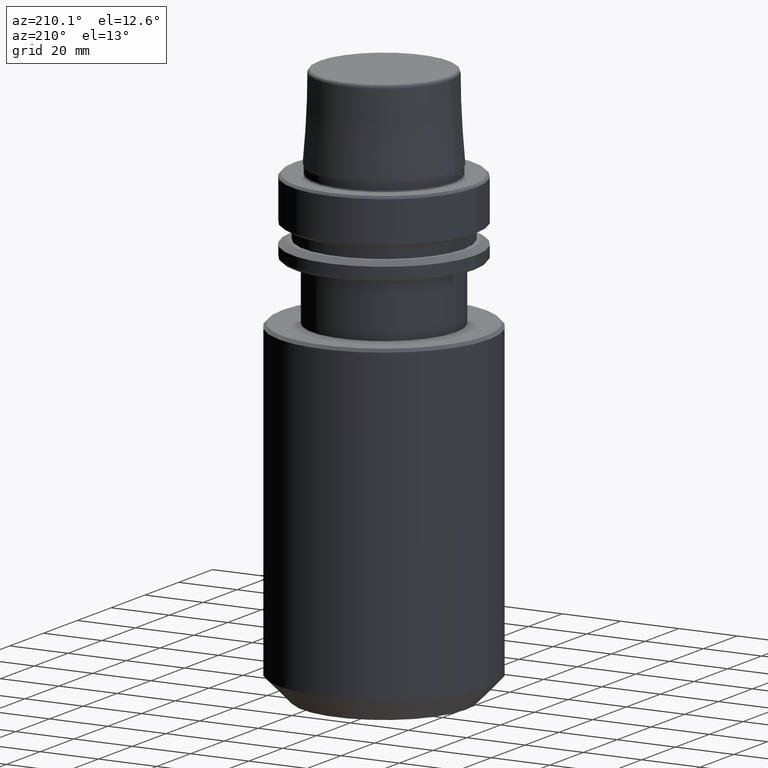
[diagram: clean part render]
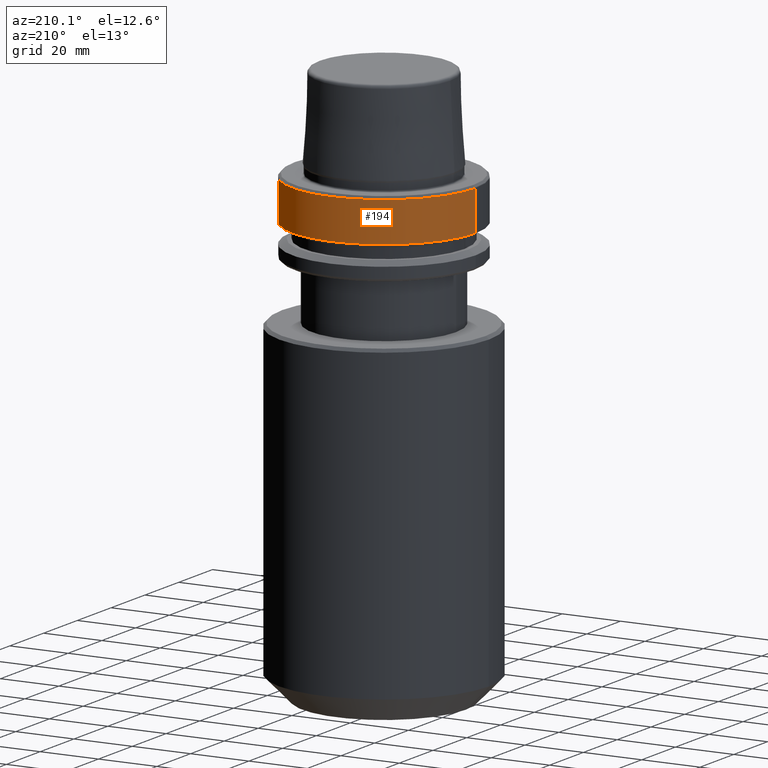
[diagram: same view with one face highlighted and labeled with its STEP entity id]
A machine part, auxiliary view. The second image highlights one B-rep face of the part: STEP entity #194.
In plain terms, the highlighted cylindrical surface (partial cylindrical patch) has radius 31.5 mm, axis along (-0, -0, 1).
Its self-contained STEP definition (entity closure, byte-faithful):
#43 = CIRCLE ( 'NONE', #227, 31.50000000000000000 ) ;
#69 = ORIENTED_EDGE ( 'NONE', *, *, #578, .F. ) ;
#178 = VERTEX_POINT ( 'NONE', #801 ) ;
#194 = ADVANCED_FACE ( 'NONE', ( #322 ), #1012, .T. ) ;
#198 = DIRECTION ( 'NONE',  ( -0.0000000000000000000, -0.0000000000000000000, 1.000000000000000000 ) ) ;
#203 = LINE ( 'NONE', #378, #1187 ) ;
#227 = AXIS2_PLACEMENT_3D ( 'NONE', #414, #1348, #1039 ) ;
#303 = ORIENTED_EDGE ( 'NONE', *, *, #694, .T. ) ;
#320 = DIRECTION ( 'NONE',  ( -0.0000000000000000000, -0.0000000000000000000, 1.000000000000000000 ) ) ;
#322 = FACE_OUTER_BOUND ( 'NONE', #338, .T. ) ;
#338 = EDGE_LOOP ( 'NONE', ( #303, #1121, #641, #69 ) ) ;
#378 = CARTESIAN_POINT ( 'NONE',  ( 31.50000000000000000, 0.0000000000000000000, 78.96908074195309300 ) ) ;
#390 = CARTESIAN_POINT ( 'NONE',  ( -31.50000000000000000, 3.857637417314162700E-015, -14.62250092524070100 ) ) ;
#414 = CARTESIAN_POINT ( 'NONE',  ( 0.0000000000000000000, 0.0000000000000000000, -14.62250092524070100 ) ) ;
#446 = CARTESIAN_POINT ( 'NONE',  ( 31.50000000000000000, 0.0000000000000000000, -14.62250092524070100 ) ) ;
#447 = AXIS2_PLACEMENT_3D ( 'NONE', #1059, #320, #953 ) ;
#503 = CIRCLE ( 'NONE', #447, 31.50000000000000000 ) ;
#508 = CARTESIAN_POINT ( 'NONE',  ( 0.0000000000000000000, 0.0000000000000000000, 78.96908074195309300 ) ) ;
#520 = CARTESIAN_POINT ( 'NONE',  ( -31.50000000000000000, 3.857637417314162700E-015, -0.9656854249492363700 ) ) ;
#578 = EDGE_CURVE ( 'NONE', #1373, #178, #203, .T. ) ;
#621 = VECTOR ( 'NONE', #198, 1000.000000000000000 ) ;
#639 = VERTEX_POINT ( 'NONE', #520 ) ;
#641 = ORIENTED_EDGE ( 'NONE', *, *, #830, .F. ) ;
#694 = EDGE_CURVE ( 'NONE', #1373, #1065, #43, .T. ) ;
#801 = CARTESIAN_POINT ( 'NONE',  ( 31.50000000000000000, 0.0000000000000000000, -0.9656854249492363700 ) ) ;
#830 = EDGE_CURVE ( 'NONE', #178, #639, #503, .T. ) ;
#863 = DIRECTION ( 'NONE',  ( -0.0000000000000000000, -0.0000000000000000000, 1.000000000000000000 ) ) ;
#884 = DIRECTION ( 'NONE',  ( -0.0000000000000000000, -0.0000000000000000000, 1.000000000000000000 ) ) ;
#927 = CARTESIAN_POINT ( 'NONE',  ( -31.50000000000000000, 3.857637417314162700E-015, 78.96908074195309300 ) ) ;
#953 = DIRECTION ( 'NONE',  ( 1.000000000000000000, 0.0000000000000000000, 0.0000000000000000000 ) ) ;
#989 = EDGE_CURVE ( 'NONE', #1065, #639, #1215, .T. ) ;
#1012 = CYLINDRICAL_SURFACE ( 'NONE', #1122, 31.50000000000000000 ) ;
#1039 = DIRECTION ( 'NONE',  ( 1.000000000000000000, 0.0000000000000000000, 0.0000000000000000000 ) ) ;
#1059 = CARTESIAN_POINT ( 'NONE',  ( 0.0000000000000000000, 0.0000000000000000000, -0.9656854249492363700 ) ) ;
#1065 = VERTEX_POINT ( 'NONE', #390 ) ;
#1121 = ORIENTED_EDGE ( 'NONE', *, *, #989, .T. ) ;
#1122 = AXIS2_PLACEMENT_3D ( 'NONE', #508, #884, #1147 ) ;
#1147 = DIRECTION ( 'NONE',  ( 1.000000000000000000, 0.0000000000000000000, 0.0000000000000000000 ) ) ;
#1187 = VECTOR ( 'NONE', #863, 1000.000000000000000 ) ;
#1215 = LINE ( 'NONE', #927, #621 ) ;
#1348 = DIRECTION ( 'NONE',  ( -0.0000000000000000000, -0.0000000000000000000, 1.000000000000000000 ) ) ;
#1373 = VERTEX_POINT ( 'NONE', #446 ) ;